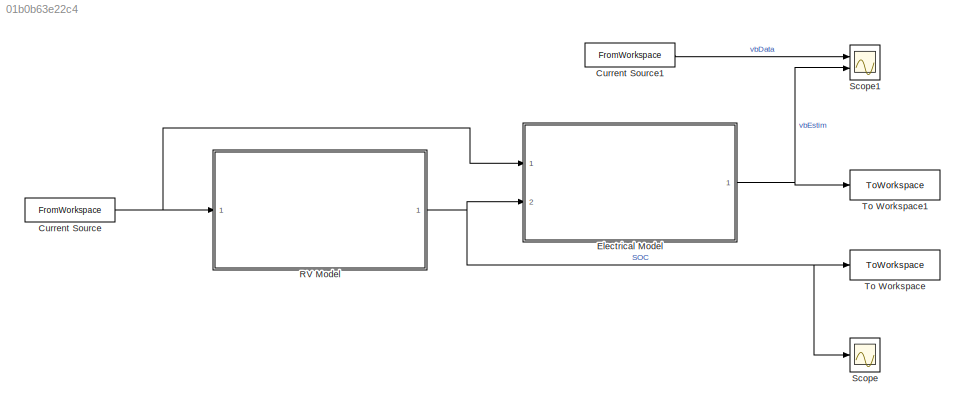
MODEL slx_01b0b63e22c4
KIND model
CONFIG AbsTol = auto
CONFIG EnableMultiTasking = off
CONFIG FixedStep = ts
CONFIG MaxStep = auto
CONFIG MinStep = auto
CONFIG RelTol = 1e-3
CONFIG SampleTimeConstraint = Unconstrained
CONFIG SolverName = FixedStepAuto
CONFIG StartTime = 0.0
CONFIG StopTime = endTime
BLOCK [FromWorkspace] Current Source
  VariableName = iTimeseries
BLOCK [FromWorkspace] Current Source1
  VariableName = vbTimeseries
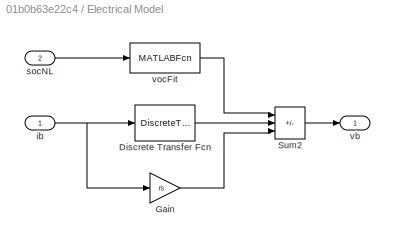
BLOCK [SubSystem] Electrical Model
  Ports = [2, 1]
  RequestExecContextInheritance = off
BLOCK [DiscreteTransferFcn] Electrical Model/Discrete Transfer Fcn
  Denominator = denDtc1
  InputPortMap = u0
  Numerator = numDtc1
  Ports = [1, 1]
BLOCK [Gain] Electrical Model/Gain
  Gain = rs
BLOCK [Sum] Electrical Model/Sum2
  IconShape = rectangular
  Inputs = +--
  Ports = [3, 1]
BLOCK [Inport] Electrical Model/ib
BLOCK [Inport] Electrical Model/socNL
  Port = 2
BLOCK [Outport] Electrical Model/vb
  VectorParamsAs1DForOutWhenUnconnected = off
BLOCK [MATLABFcn] Electrical Model/vocFit
  MATLABFcn = vocFitSimulink(u)
  Ports = [1, 1]
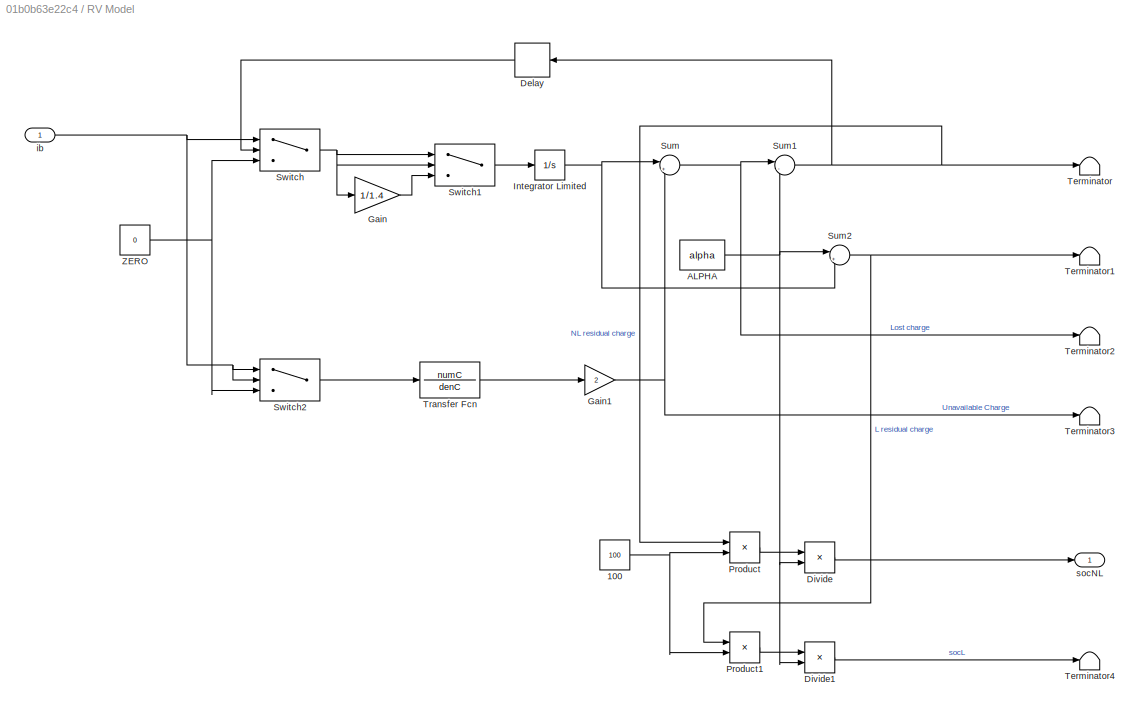
BLOCK [SubSystem] RV Model
  Ports = [1, 1]
  RequestExecContextInheritance = off
BLOCK [Constant] RV Model/100
  Value = 100
BLOCK [Constant] RV Model/ALPHA
  Value = alpha
BLOCK [Delay] RV Model/Delay
  DelayLength = 1
  InputPortMap = u0
  Ports = [1, 1]
BLOCK [Product] RV Model/Divide
  Inputs = */
  Ports = [2, 1]
BLOCK [Product] RV Model/Divide1
  Inputs = */
  Ports = [2, 1]
BLOCK [Gain] RV Model/Gain
  Gain = 1/1.4
BLOCK [Gain] RV Model/Gain1
  Gain = 2
BLOCK [Integrator] RV Model/Integrator Limited
  LimitOutput = on
  LowerSaturationLimit = 0
  Ports = [1, 1]
  UpperSaturationLimit = alpha
BLOCK [Product] RV Model/Product
  Ports = [2, 1]
BLOCK [Product] RV Model/Product1
  Ports = [2, 1]
BLOCK [Sum] RV Model/Sum
  Inputs = |++
  Ports = [2, 1]
BLOCK [Sum] RV Model/Sum1
  Inputs = |-+
  Ports = [2, 1]
BLOCK [Sum] RV Model/Sum2
  Inputs = |+-
  Ports = [2, 1]
BLOCK [Switch] RV Model/Switch
  Criteria = u2 > Threshold
  InputSameDT = off
  SaturateOnIntegerOverflow = off
BLOCK [Switch] RV Model/Switch1
  Criteria = u2 > Threshold
  InputSameDT = off
  SaturateOnIntegerOverflow = off
BLOCK [Switch] RV Model/Switch2
  Criteria = u2 > Threshold
  InputSameDT = off
  SaturateOnIntegerOverflow = off
BLOCK [Terminator] RV Model/Terminator
BLOCK [Terminator] RV Model/Terminator1
BLOCK [Terminator] RV Model/Terminator2
BLOCK [Terminator] RV Model/Terminator3
BLOCK [Terminator] RV Model/Terminator4
BLOCK [TransferFcn] RV Model/Transfer Fcn
  Denominator = denC
  Numerator = numC
BLOCK [Constant] RV Model/ZERO
  Value = 0
BLOCK [Inport] RV Model/ib
BLOCK [Outport] RV Model/socNL
  VectorParamsAs1DForOutWhenUnconnected = off
BLOCK [Scope] Scope
  Floating = off
  NumInputPorts = 1
  Ports = [1]
  ScopeSpecificationString = Simulink.scopes.TimeScopeBlockCfg('CurrentConfiguration', extmgr.ConfigurationSet(extmgr.Configuration('Core','General UI',true),extmgr.Configuration('Core','Source UI',true),extmgr.Configuration('Sources','WiredSimulink',true),extmgr.Configuration('Visuals','Time Domain',true,'SerializedDisplays',{struct('MinYLimReal','90.00000','MaxYLimReal','110.00000','YLabelReal','','MinYLimMag','90.00000','M...<+2204ch>
BLOCK [Scope] Scope1
  Floating = off
  NumInputPorts = 2
  Ports = [2]
  ScopeSpecificationString = Simulink.scopes.TimeScopeBlockCfg('CurrentConfiguration', extmgr.ConfigurationSet(extmgr.Configuration('Core','General UI',true),extmgr.Configuration('Core','Source UI',true),extmgr.Configuration('Sources','WiredSimulink',true,'DataLoggingVariableName','ScopeData1'),extmgr.Configuration('Visuals','Time Domain',true,'SerializedDisplays',{struct('MinYLimReal','3.64894','MaxYLimReal','4.37114','YLabe...<+2278ch>
BLOCK [ToWorkspace] To Workspace
  FixptAsFi = on
  MaxDataPoints = inf
  Ports = [1]
  SampleTime = -1
  SaveFormat = Timeseries
  VariableName = socNL
BLOCK [ToWorkspace] To Workspace1
  FixptAsFi = on
  MaxDataPoints = inf
  Ports = [1]
  SampleTime = -1
  SaveFormat = Timeseries
  VariableName = vb
LINE Current Source1:1 -> Scope1:1
NET Current Source:1 -> Electrical Model:1, RV Model:1
LINE Electrical Model/Discrete Transfer Fcn:1 -> Electrical Model/Sum2:2
LINE Electrical Model/Gain:1 -> Electrical Model/Sum2:3
LINE Electrical Model/Sum2:1 -> Electrical Model/vb:1
NET Electrical Model/ib:1 -> Electrical Model/Discrete Transfer Fcn:1, Electrical Model/Gain:1
LINE Electrical Model/socNL:1 -> Electrical Model/vocFit:1
LINE Electrical Model/vocFit:1 -> Electrical Model/Sum2:1
NET Electrical Model:1 -> Scope1:2, To Workspace1:1
NET RV Model/100:1 -> RV Model/Product1:2, RV Model/Product:2
NET RV Model/ALPHA:1 -> RV Model/Divide1:2, RV Model/Divide:2, RV Model/Sum1:2, RV Model/Sum2:1
LINE RV Model/Delay:1 -> RV Model/Switch:2
LINE RV Model/Divide1:1 -> RV Model/Terminator4:1
LINE RV Model/Divide:1 -> RV Model/socNL:1
NET RV Model/Gain1:1 -> RV Model/Sum:2, RV Model/Terminator3:1
LINE RV Model/Gain:1 -> RV Model/Switch1:3
NET RV Model/Integrator Limited:1 -> RV Model/Sum2:2, RV Model/Sum:1
LINE RV Model/Product1:1 -> RV Model/Divide1:1
LINE RV Model/Product:1 -> RV Model/Divide:1
NET RV Model/Sum1:1 -> RV Model/Delay:1, RV Model/Product:1, RV Model/Terminator:1
NET RV Model/Sum2:1 -> RV Model/Product1:1, RV Model/Terminator1:1
NET RV Model/Sum:1 -> RV Model/Sum1:1, RV Model/Terminator2:1
LINE RV Model/Switch1:1 -> RV Model/Integrator Limited:1
LINE RV Model/Switch2:1 -> RV Model/Transfer Fcn:1
NET RV Model/Switch:1 -> RV Model/Gain:1, RV Model/Switch1:1, RV Model/Switch1:2
LINE RV Model/Transfer Fcn:1 -> RV Model/Gain1:1
NET RV Model/ZERO:1 -> RV Model/Switch2:3, RV Model/Switch:3
NET RV Model/ib:1 -> RV Model/Switch2:1, RV Model/Switch2:2, RV Model/Switch:1
NET RV Model:1 -> Electrical Model:2, Scope:1, To Workspace:1
note: NET lines group one-source signal fan-out (src -> all destinations, sorted); 1:1 wires keep LINE
